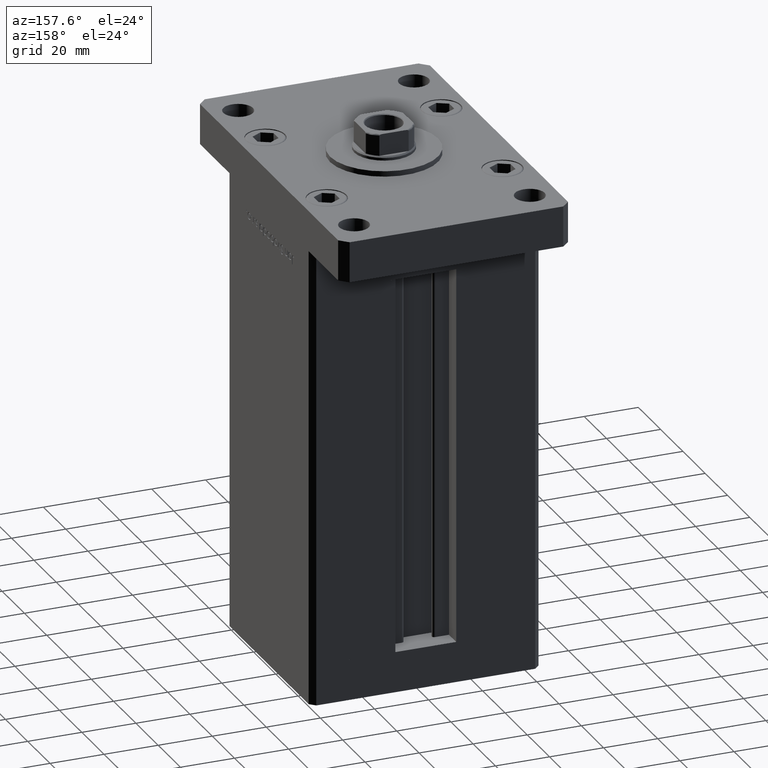
[diagram: clean part render]
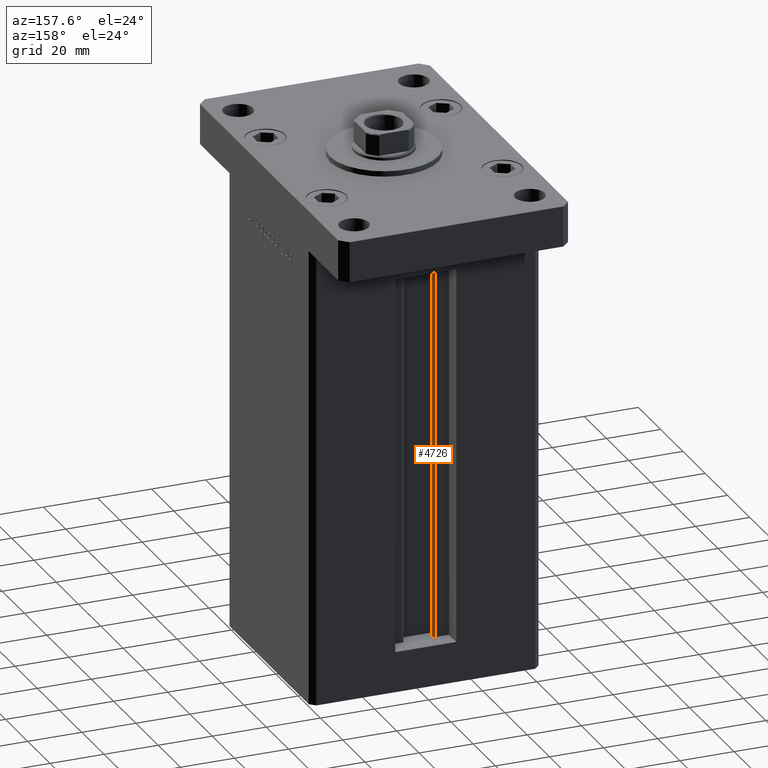
[diagram: same view with one face highlighted and labeled with its STEP entity id]
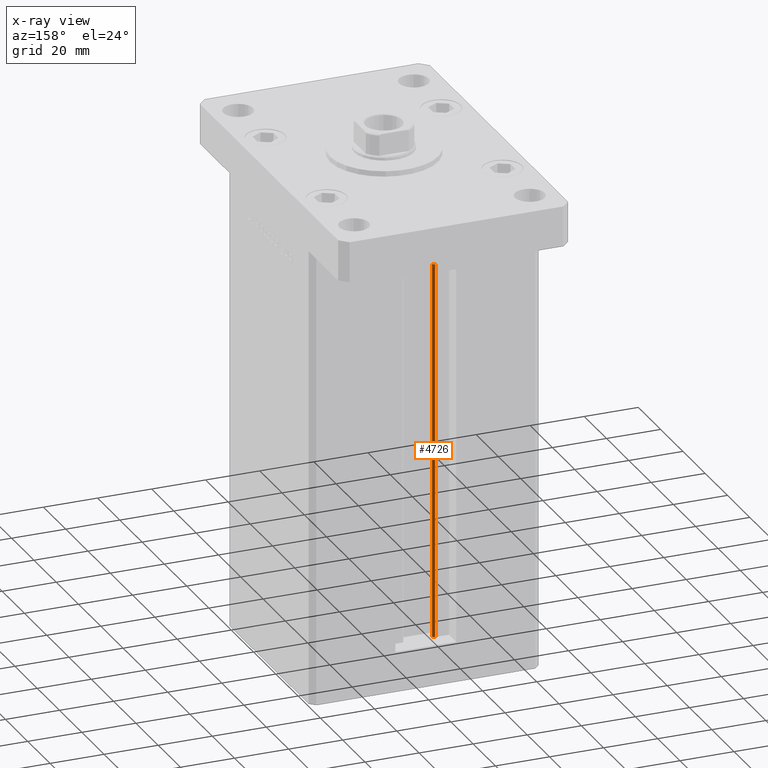
[diagram: x-ray of the same camera — body ghosted, the highlighted face saturated]
A machine part, auxiliary view. The second image highlights one B-rep face of the part: STEP entity #4726.
The next image is the same camera in x-ray: the body ghosted, the highlighted face saturated — about 1% of this face is hidden behind the body in this view.
In plain terms, the highlighted cylindrical surface (edge-blend (fillet) strip) has radius 0.9333 mm, axis along (0, 0, 1).
Its self-contained STEP definition (entity closure, byte-faithful):
#1393 = CIRCLE ( 'NONE', #6582, 0.9333333333340015914 ) ;
#4726 = ADVANCED_FACE ( 'NONE', ( #20917 ), #36934, .T. ) ;
#5421 = DIRECTION ( 'NONE',  ( 1.000000000000000000, 0.000000000000000000, 0.000000000000000000 ) ) ;
#5675 = AXIS2_PLACEMENT_3D ( 'NONE', #49678, #41265, #7903 ) ;
#6582 = AXIS2_PLACEMENT_3D ( 'NONE', #46132, #29330, #5421 ) ;
#7221 = CARTESIAN_POINT ( 'NONE',  ( -5.249999999999997335, 30.06666666666599141, 0.000000000000000000 ) ) ;
#7903 = DIRECTION ( 'NONE',  ( 1.000000000000000000, 0.000000000000000000, 0.000000000000000000 ) ) ;
#10553 = VERTEX_POINT ( 'NONE', #50623 ) ;
#10681 = AXIS2_PLACEMENT_3D ( 'NONE', #51848, #43444, #26362 ) ;
#11088 = EDGE_CURVE ( 'NONE', #43527, #35373, #44229, .T. ) ;
#15068 = ORIENTED_EDGE ( 'NONE', *, *, #29873, .F. ) ;
#15202 = CARTESIAN_POINT ( 'NONE',  ( -6.183333333333999704, 30.99999999999999289, 0.000000000000000000 ) ) ;
#15552 = ORIENTED_EDGE ( 'NONE', *, *, #35214, .T. ) ;
#16560 = ORIENTED_EDGE ( 'NONE', *, *, #11088, .T. ) ;
#18587 = ORIENTED_EDGE ( 'NONE', *, *, #42784, .F. ) ;
#20917 = FACE_OUTER_BOUND ( 'NONE', #35110, .T. ) ;
#22786 = VECTOR ( 'NONE', #43329, 1000.000000000000000 ) ;
#23718 = CIRCLE ( 'NONE', #10681, 0.9333333333340015914 ) ;
#26362 = DIRECTION ( 'NONE',  ( 1.000000000000000000, 0.000000000000000000, 0.000000000000000000 ) ) ;
#28401 = VERTEX_POINT ( 'NONE', #52771 ) ;
#29330 = DIRECTION ( 'NONE',  ( -0.000000000000000000, -0.000000000000000000, -1.000000000000000000 ) ) ;
#29873 = EDGE_CURVE ( 'NONE', #28401, #10553, #44121, .T. ) ;
#30970 = DIRECTION ( 'NONE',  ( -0.000000000000000000, -0.000000000000000000, 1.000000000000000000 ) ) ;
#33904 = CARTESIAN_POINT ( 'NONE',  ( -6.183333333333999704, 30.99999999999999289, 139.5000000000000000 ) ) ;
#34390 = VECTOR ( 'NONE', #30970, 1000.000000000000000 ) ;
#35110 = EDGE_LOOP ( 'NONE', ( #15068, #18587, #16560, #15552 ) ) ;
#35214 = EDGE_CURVE ( 'NONE', #35373, #10553, #23718, .T. ) ;
#35373 = VERTEX_POINT ( 'NONE', #33904 ) ;
#36934 = CYLINDRICAL_SURFACE ( 'NONE', #5675, 0.9333333333340015914 ) ;
#40378 = CARTESIAN_POINT ( 'NONE',  ( -6.183333333333999704, 30.99999999999999289, 0.000000000000000000 ) ) ;
#41265 = DIRECTION ( 'NONE',  ( -0.000000000000000000, -0.000000000000000000, 1.000000000000000000 ) ) ;
#42784 = EDGE_CURVE ( 'NONE', #43527, #28401, #1393, .T. ) ;
#43329 = DIRECTION ( 'NONE',  ( -0.000000000000000000, -0.000000000000000000, 1.000000000000000000 ) ) ;
#43444 = DIRECTION ( 'NONE',  ( 0.000000000000000000, 0.000000000000000000, -1.000000000000000000 ) ) ;
#43527 = VERTEX_POINT ( 'NONE', #40378 ) ;
#44121 = LINE ( 'NONE', #7221, #22786 ) ;
#44229 = LINE ( 'NONE', #15202, #34390 ) ;
#46132 = CARTESIAN_POINT ( 'NONE',  ( -6.183333333333999704, 30.06666666666599141, 0.000000000000000000 ) ) ;
#49678 = CARTESIAN_POINT ( 'NONE',  ( -6.183333333333999704, 30.06666666666599141, 0.000000000000000000 ) ) ;
#50623 = CARTESIAN_POINT ( 'NONE',  ( -5.249999999999997335, 30.06666666666599141, 139.5000000000000000 ) ) ;
#51848 = CARTESIAN_POINT ( 'NONE',  ( -6.183333333333999704, 30.06666666666599141, 139.5000000000000000 ) ) ;
#52771 = CARTESIAN_POINT ( 'NONE',  ( -5.249999999999997335, 30.06666666666599141, 0.000000000000000000 ) ) ;